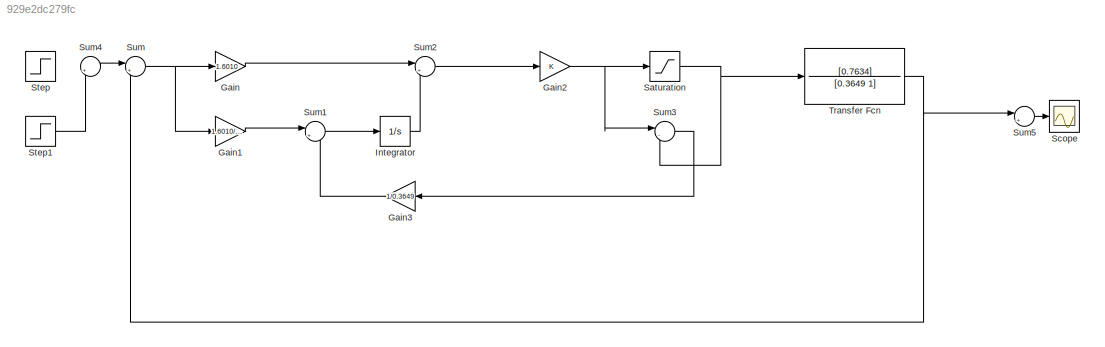
MODEL slx_929e2dc279fc
KIND model
CONFIG AbsTol = auto
CONFIG EnableMultiTasking = off
CONFIG FixedStep = auto
CONFIG MaxStep = auto
CONFIG MinStep = auto
CONFIG RelTol = 1e-3
CONFIG SampleTimeConstraint = Unconstrained
CONFIG SolverName = VariableStepAuto
CONFIG StartTime = 0.0
CONFIG StopTime = 10.0
BLOCK [Gain] Gain
  Gain = 1.6010
BLOCK [Gain] Gain1
  Gain = 1.6010/0.3613
BLOCK [Gain] Gain2
BLOCK [Gain] Gain3
  Gain = 1/0.3649
  NameLocation = top
BLOCK [Integrator] Integrator
BLOCK [Saturate] Saturation
  LowerLimit = -500
  UpperLimit = 500
BLOCK [Scope] Scope
  Floating = off
  NumInputPorts = 1
  ScopeSpecificationString = Simulink.scopes.TimeScopeBlockCfg('CurrentConfiguration', extmgr.ConfigurationSet(extmgr.Configuration('Core','General UI',true),extmgr.Configuration('Core','Source UI',true),extmgr.Configuration('Sources','WiredSimulink',true),extmgr.Configuration('Visuals','Time Domain',true,'SerializedDisplays',{struct('MinYLimReal','-18.74996','MaxYLimReal','168.74967','YLabelReal','','MinYLimMag','0.00000','M...<+1450ch>
BLOCK [Step] Step
  After = 120
  Before = 150
  SampleTime = 0.01
  Time = 2
BLOCK [Step] Step1
  After = 150
  Before = 120
  SampleTime = 0.01
  Time = 7
BLOCK [Sum] Sum
  Inputs = |+-
BLOCK [Sum] Sum1
  Inputs = |++
BLOCK [Sum] Sum2
  Inputs = |++
BLOCK [Sum] Sum3
  Inputs = |-+
BLOCK [Sum] Sum4
  Inputs = |++
BLOCK [Sum] Sum5
  Inputs = |++
BLOCK [TransferFcn] Transfer Fcn
  Denominator = [0.3649 1]
  Numerator = [0.7634]
LINE Gain1:1 -> Sum1:1
NET Gain2:1 -> Saturation:1, Sum3:1
LINE Gain3:1 -> Sum1:2
LINE Gain:1 -> Sum2:1
LINE Integrator:1 -> Sum2:2
NET Saturation:1 -> Sum3:2, Transfer Fcn:1
LINE Step1:1 -> Sum4:2
LINE Sum1:1 -> Integrator:1
LINE Sum2:1 -> Gain2:1
LINE Sum3:1 -> Gain3:1
LINE Sum4:1 -> Sum:1
LINE Sum5:1 -> Scope:1
NET Sum:1 -> Gain1:1, Gain:1
NET Transfer Fcn:1 -> Sum5:1, Sum:2
note: NET lines group one-source signal fan-out (src -> all destinations, sorted); 1:1 wires keep LINE
